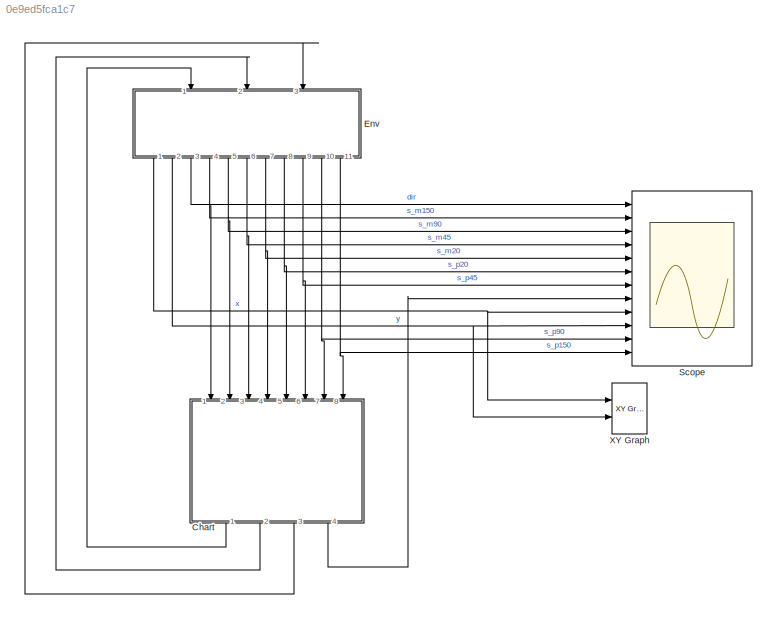
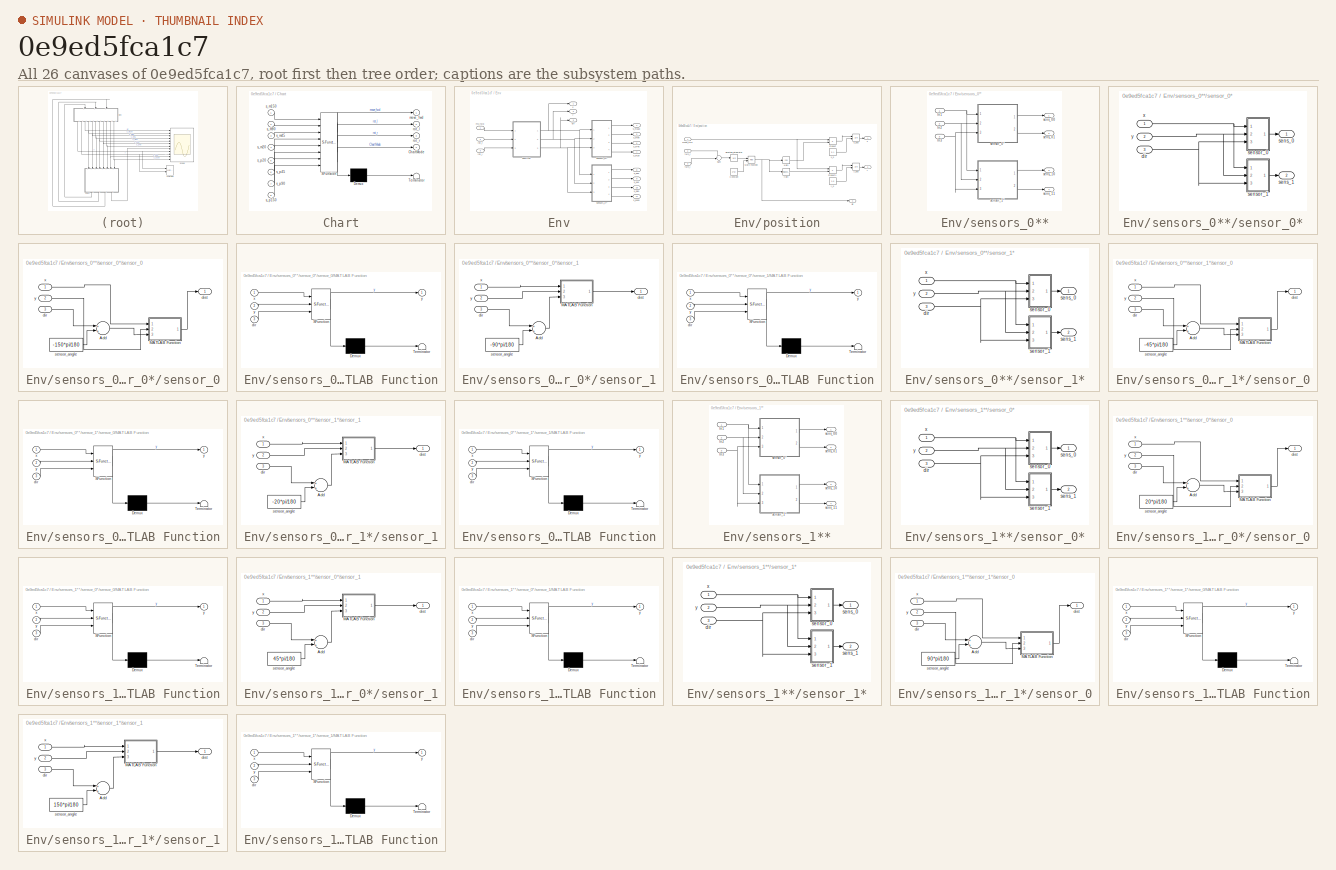
[diagram: thumbnail index - all 26 canvases of the model, root first then tree order]
MODEL slx_0e9ed5fca1c7
KIND model
CONFIG AbsTol = auto
CONFIG FixedStep = 0.004
CONFIG MaxStep = auto
CONFIG MinStep = auto
CONFIG RelTol = 1e-3
CONFIG SampleTimeConstraint = Unconstrained
CONFIG Solver = FixedStepAuto
CONFIG SolverMode = Auto
CONFIG SolverName = FixedStepAuto
CONFIG StartTime = 0.0
CONFIG StopTime = 30.0
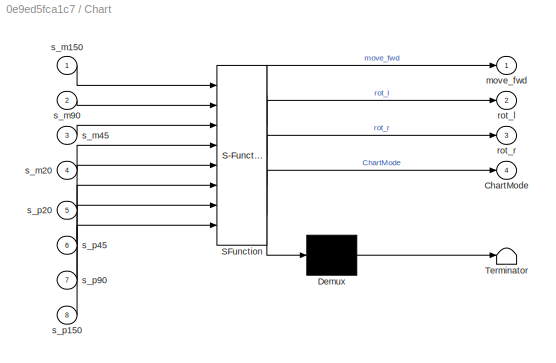
BLOCK [SubSystem] Chart
  ErrorFcn = Stateflow.Translate.translate
  PermitHierarchicalResolution = ExplicitOnly
  Ports = [8, 4]
  RequestExecContextInheritance = off
  SFBlockType = Chart
  TreatAsAtomicUnit = on
  Variant = off
BLOCK [Demux] Chart/ Demux 
  Outputs = 1
  Ports = [1, 1]
BLOCK [S-Function] Chart/ SFunction 
  EnableBusSupport = on
  FunctionName = sf_sfun
  PortCounts = [8 5]
  Ports = [8, 5]
  SFunctionDeploymentMode = off
  Tag = Stateflow S-Function right_hand_rule 3
BLOCK [Terminator] Chart/ Terminator 
BLOCK [Outport] Chart/ChartMode
  IconDisplay = Port number
  Port = 4
BLOCK [Outport] Chart/move_fwd
  IconDisplay = Port number
BLOCK [Outport] Chart/rot_l
  IconDisplay = Port number
  Port = 2
BLOCK [Outport] Chart/rot_r
  IconDisplay = Port number
  Port = 3
BLOCK [Inport] Chart/s_m150
  IconDisplay = Port number
BLOCK [Inport] Chart/s_m20
  IconDisplay = Port number
  Port = 4
BLOCK [Inport] Chart/s_m45
  IconDisplay = Port number
  Port = 3
BLOCK [Inport] Chart/s_m90
  IconDisplay = Port number
  Port = 2
BLOCK [Inport] Chart/s_p150
  IconDisplay = Port number
  Port = 8
BLOCK [Inport] Chart/s_p20
  IconDisplay = Port number
  Port = 5
BLOCK [Inport] Chart/s_p45
  IconDisplay = Port number
  Port = 6
BLOCK [Inport] Chart/s_p90
  IconDisplay = Port number
  Port = 7
BLOCK [SubSystem] Env
  Ports = [3, 11]
  RequestExecContextInheritance = off
  Variant = off
BLOCK [Outport] Env/dir
  IconDisplay = Port number
  Port = 3
BLOCK [Inport] Env/mv_fwd
  IconDisplay = Port number
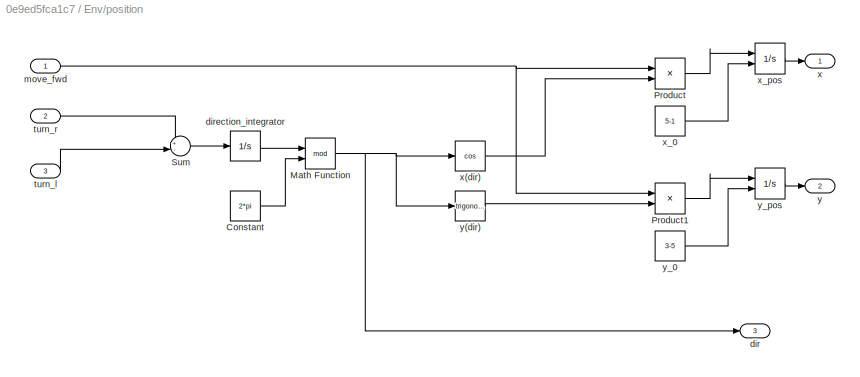
BLOCK [SubSystem] Env/position
  Ports = [3, 3]
  RequestExecContextInheritance = off
  Variant = off
BLOCK [Constant] Env/position/Constant
  Value = 2*pi
BLOCK [Math] Env/position/Math Function
  Operator = mod
  Ports = [2, 1]
BLOCK [Product] Env/position/Product
  InputSameDT = off
  OutDataTypeStr = Inherit: Inherit via internal rule
  Ports = [2, 1]
  RndMeth = Floor
  SaturateOnIntegerOverflow = off
BLOCK [Product] Env/position/Product1
  InputSameDT = off
  OutDataTypeStr = Inherit: Inherit via internal rule
  Ports = [2, 1]
  RndMeth = Floor
  SaturateOnIntegerOverflow = off
BLOCK [Sum] Env/position/Sum
  IconShape = round
  InputSameDT = off
  Inputs = +-
  OutDataTypeStr = Inherit: Inherit via internal rule
  Ports = [2, 1]
  SaturateOnIntegerOverflow = off
BLOCK [Outport] Env/position/dir
  IconDisplay = Port number
  Port = 3
BLOCK [Integrator] Env/position/direction_integrator 
  InitialCondition = -150*pi/180
  Ports = [1, 1]
BLOCK [Inport] Env/position/move_fwd
  IconDisplay = Port number
BLOCK [Inport] Env/position/turn_l
  IconDisplay = Port number
  Port = 3
BLOCK [Inport] Env/position/turn_r
  IconDisplay = Port number
  Port = 2
BLOCK [Outport] Env/position/x
  IconDisplay = Port number
BLOCK [Trigonometry] Env/position/x(dir)
  Operator = cos
  Ports = [1, 1]
BLOCK [Constant] Env/position/x_0
  Value = 5-1
BLOCK [Integrator] Env/position/x_pos
  InitialCondition = exterm
  InitialConditionSource = external
  Ports = [2, 1]
BLOCK [Outport] Env/position/y
  IconDisplay = Port number
  Port = 2
BLOCK [Trigonometry] Env/position/y(dir)
  Ports = [1, 1]
BLOCK [Constant] Env/position/y_0
  Value = 3-5
BLOCK [Integrator] Env/position/y_pos
  InitialCondition = exterm
  InitialConditionSource = external
  Ports = [2, 1]
BLOCK [Inport] Env/rot_l
  IconDisplay = Port number
  Port = 3
BLOCK [Inport] Env/rot_r
  IconDisplay = Port number
  Port = 2
BLOCK [Outport] Env/s_m150
  IconDisplay = Port number
  Port = 4
BLOCK [Outport] Env/s_m20
  IconDisplay = Port number
  Port = 7
BLOCK [Outport] Env/s_m45
  IconDisplay = Port number
  Port = 6
BLOCK [Outport] Env/s_m90
  IconDisplay = Port number
  Port = 5
BLOCK [Outport] Env/s_p150
  IconDisplay = Port number
  Port = 11
BLOCK [Outport] Env/s_p20
  IconDisplay = Port number
  Port = 8
BLOCK [Outport] Env/s_p45
  IconDisplay = Port number
  Port = 9
BLOCK [Outport] Env/s_p90
  IconDisplay = Port number
  Port = 10
BLOCK [SubSystem] Env/sensors_0**
  Ports = [3, 4]
  RequestExecContextInheritance = off
  Variant = off
BLOCK [Inport] Env/sensors_0**/In1
  IconDisplay = Port number
BLOCK [Inport] Env/sensors_0**/In2
  IconDisplay = Port number
  Port = 2
BLOCK [Inport] Env/sensors_0**/In3
  IconDisplay = Port number
  Port = 3
BLOCK [Outport] Env/sensors_0**/sens_00
  IconDisplay = Port number
BLOCK [Outport] Env/sensors_0**/sens_01
  IconDisplay = Port number
  Port = 2
BLOCK [Outport] Env/sensors_0**/sens_10
  IconDisplay = Port number
  Port = 3
BLOCK [Outport] Env/sensors_0**/sens_11
  IconDisplay = Port number
  Port = 4
BLOCK [SubSystem] Env/sensors_0**/sensor_0*
  Ports = [3, 2]
  RequestExecContextInheritance = off
  Variant = off
BLOCK [Inport] Env/sensors_0**/sensor_0*/dir
  IconDisplay = Port number
  Port = 3
BLOCK [Outport] Env/sensors_0**/sensor_0*/sens_0
  IconDisplay = Port number
BLOCK [Outport] Env/sensors_0**/sensor_0*/sens_1
  IconDisplay = Port number
  Port = 2
BLOCK [SubSystem] Env/sensors_0**/sensor_0*/sensor_0
  Ports = [3, 1]
  RequestExecContextInheritance = off
  Variant = off
BLOCK [Sum] Env/sensors_0**/sensor_0*/sensor_0/Add
  InputSameDT = off
  OutDataTypeStr = Inherit: Inherit via internal rule
  Ports = [2, 1]
  SaturateOnIntegerOverflow = off
BLOCK [SubSystem] Env/sensors_0**/sensor_0*/sensor_0/MATLAB Function
  ErrorFcn = Stateflow.Translate.translate
  PermitHierarchicalResolution = ExplicitOnly
  Ports = [3, 1]
  RequestExecContextInheritance = off
  SFBlockType = MATLAB Function
  TreatAsAtomicUnit = on
  Variant = off
BLOCK [Demux] Env/sensors_0**/sensor_0*/sensor_0/MATLAB Function/ Demux 
  Outputs = 1
  Ports = [1, 1]
BLOCK [S-Function] Env/sensors_0**/sensor_0*/sensor_0/MATLAB Function/ SFunction 
  EnableBusSupport = on
  FunctionName = sf_sfun
  PortCounts = [3 2]
  Ports = [3, 2]
  SFunctionDeploymentMode = off
  Tag = Stateflow S-Function right_hand_rule 2
BLOCK [Terminator] Env/sensors_0**/sensor_0*/sensor_0/MATLAB Function/ Terminator 
BLOCK [Inport] Env/sensors_0**/sensor_0*/sensor_0/MATLAB Function/dir
  IconDisplay = Port number
  Port = 3
BLOCK [Inport] Env/sensors_0**/sensor_0*/sensor_0/MATLAB Function/x
  IconDisplay = Port number
BLOCK [Outport] Env/sensors_0**/sensor_0*/sensor_0/MATLAB Function/y
  IconDisplay = Port number
BLOCK [Inport] Env/sensors_0**/sensor_0*/sensor_0/MATLAB Function/y 
  IconDisplay = Port number
  Port = 2
BLOCK [Inport] Env/sensors_0**/sensor_0*/sensor_0/dir
  IconDisplay = Port number
  Port = 3
BLOCK [Outport] Env/sensors_0**/sensor_0*/sensor_0/dist
  IconDisplay = Port number
BLOCK [Constant] Env/sensors_0**/sensor_0*/sensor_0/sensor_angle
  Value = -150*pi/180
BLOCK [Inport] Env/sensors_0**/sensor_0*/sensor_0/x
  IconDisplay = Port number
BLOCK [Inport] Env/sensors_0**/sensor_0*/sensor_0/y
  IconDisplay = Port number
  Port = 2
BLOCK [SubSystem] Env/sensors_0**/sensor_0*/sensor_1
  Ports = [3, 1]
  RequestExecContextInheritance = off
  Variant = off
BLOCK [Sum] Env/sensors_0**/sensor_0*/sensor_1/Add
  InputSameDT = off
  OutDataTypeStr = Inherit: Inherit via internal rule
  Ports = [2, 1]
  SaturateOnIntegerOverflow = off
BLOCK [SubSystem] Env/sensors_0**/sensor_0*/sensor_1/MATLAB Function
  ErrorFcn = Stateflow.Translate.translate
  PermitHierarchicalResolution = ExplicitOnly
  Ports = [3, 1]
  RequestExecContextInheritance = off
  SFBlockType = MATLAB Function
  TreatAsAtomicUnit = on
  Variant = off
BLOCK [Demux] Env/sensors_0**/sensor_0*/sensor_1/MATLAB Function/ Demux 
  Outputs = 1
  Ports = [1, 1]
BLOCK [S-Function] Env/sensors_0**/sensor_0*/sensor_1/MATLAB Function/ SFunction 
  EnableBusSupport = on
  FunctionName = sf_sfun
  PortCounts = [3 2]
  Ports = [3, 2]
  SFunctionDeploymentMode = off
  Tag = Stateflow S-Function right_hand_rule 1
BLOCK [Terminator] Env/sensors_0**/sensor_0*/sensor_1/MATLAB Function/ Terminator 
BLOCK [Inport] Env/sensors_0**/sensor_0*/sensor_1/MATLAB Function/dir
  IconDisplay = Port number
  Port = 3
BLOCK [Inport] Env/sensors_0**/sensor_0*/sensor_1/MATLAB Function/x
  IconDisplay = Port number
BLOCK [Outport] Env/sensors_0**/sensor_0*/sensor_1/MATLAB Function/y
  IconDisplay = Port number
BLOCK [Inport] Env/sensors_0**/sensor_0*/sensor_1/MATLAB Function/y 
  IconDisplay = Port number
  Port = 2
BLOCK [Inport] Env/sensors_0**/sensor_0*/sensor_1/dir
  IconDisplay = Port number
  Port = 3
BLOCK [Outport] Env/sensors_0**/sensor_0*/sensor_1/dist
  IconDisplay = Port number
BLOCK [Constant] Env/sensors_0**/sensor_0*/sensor_1/sensor_angle
  Value = -90*pi/180
BLOCK [Inport] Env/sensors_0**/sensor_0*/sensor_1/x
  IconDisplay = Port number
BLOCK [Inport] Env/sensors_0**/sensor_0*/sensor_1/y
  IconDisplay = Port number
  Port = 2
BLOCK [Inport] Env/sensors_0**/sensor_0*/x
  IconDisplay = Port number
BLOCK [Inport] Env/sensors_0**/sensor_0*/y
  IconDisplay = Port number
  Port = 2
BLOCK [SubSystem] Env/sensors_0**/sensor_1*
  Ports = [3, 2]
  RequestExecContextInheritance = off
  Variant = off
BLOCK [Inport] Env/sensors_0**/sensor_1*/dir
  IconDisplay = Port number
  Port = 3
BLOCK [Outport] Env/sensors_0**/sensor_1*/sens_0
  IconDisplay = Port number
BLOCK [Outport] Env/sensors_0**/sensor_1*/sens_1
  IconDisplay = Port number
  Port = 2
BLOCK [SubSystem] Env/sensors_0**/sensor_1*/sensor_0
  Ports = [3, 1]
  RequestExecContextInheritance = off
  Variant = off
BLOCK [Sum] Env/sensors_0**/sensor_1*/sensor_0/Add
  InputSameDT = off
  OutDataTypeStr = Inherit: Inherit via internal rule
  Ports = [2, 1]
  SaturateOnIntegerOverflow = off
BLOCK [SubSystem] Env/sensors_0**/sensor_1*/sensor_0/MATLAB Function
  ErrorFcn = Stateflow.Translate.translate
  PermitHierarchicalResolution = ExplicitOnly
  Ports = [3, 1]
  RequestExecContextInheritance = off
  SFBlockType = MATLAB Function
  TreatAsAtomicUnit = on
  Variant = off
BLOCK [Demux] Env/sensors_0**/sensor_1*/sensor_0/MATLAB Function/ Demux 
  Outputs = 1
  Ports = [1, 1]
BLOCK [S-Function] Env/sensors_0**/sensor_1*/sensor_0/MATLAB Function/ SFunction 
  EnableBusSupport = on
  FunctionName = sf_sfun
  PortCounts = [3 2]
  Ports = [3, 2]
  SFunctionDeploymentMode = off
  Tag = Stateflow S-Function right_hand_rule 4
BLOCK [Terminator] Env/sensors_0**/sensor_1*/sensor_0/MATLAB Function/ Terminator 
BLOCK [Inport] Env/sensors_0**/sensor_1*/sensor_0/MATLAB Function/dir
  IconDisplay = Port number
  Port = 3
BLOCK [Inport] Env/sensors_0**/sensor_1*/sensor_0/MATLAB Function/x
  IconDisplay = Port number
BLOCK [Outport] Env/sensors_0**/sensor_1*/sensor_0/MATLAB Function/y
  IconDisplay = Port number
BLOCK [Inport] Env/sensors_0**/sensor_1*/sensor_0/MATLAB Function/y 
  IconDisplay = Port number
  Port = 2
BLOCK [Inport] Env/sensors_0**/sensor_1*/sensor_0/dir
  IconDisplay = Port number
  Port = 3
BLOCK [Outport] Env/sensors_0**/sensor_1*/sensor_0/dist
  IconDisplay = Port number
BLOCK [Constant] Env/sensors_0**/sensor_1*/sensor_0/sensor_angle
  Value = -45*pi/180
BLOCK [Inport] Env/sensors_0**/sensor_1*/sensor_0/x
  IconDisplay = Port number
BLOCK [Inport] Env/sensors_0**/sensor_1*/sensor_0/y
  IconDisplay = Port number
  Port = 2
BLOCK [SubSystem] Env/sensors_0**/sensor_1*/sensor_1
  Ports = [3, 1]
  RequestExecContextInheritance = off
  Variant = off
BLOCK [Sum] Env/sensors_0**/sensor_1*/sensor_1/Add
  InputSameDT = off
  OutDataTypeStr = Inherit: Inherit via internal rule
  Ports = [2, 1]
  SaturateOnIntegerOverflow = off
BLOCK [SubSystem] Env/sensors_0**/sensor_1*/sensor_1/MATLAB Function
  ErrorFcn = Stateflow.Translate.translate
  PermitHierarchicalResolution = ExplicitOnly
  Ports = [3, 1]
  RequestExecContextInheritance = off
  SFBlockType = MATLAB Function
  TreatAsAtomicUnit = on
  Variant = off
BLOCK [Demux] Env/sensors_0**/sensor_1*/sensor_1/MATLAB Function/ Demux 
  Outputs = 1
  Ports = [1, 1]
BLOCK [S-Function] Env/sensors_0**/sensor_1*/sensor_1/MATLAB Function/ SFunction 
  EnableBusSupport = on
  FunctionName = sf_sfun
  PortCounts = [3 2]
  Ports = [3, 2]
  SFunctionDeploymentMode = off
  Tag = Stateflow S-Function right_hand_rule 5
BLOCK [Terminator] Env/sensors_0**/sensor_1*/sensor_1/MATLAB Function/ Terminator 
BLOCK [Inport] Env/sensors_0**/sensor_1*/sensor_1/MATLAB Function/dir
  IconDisplay = Port number
  Port = 3
BLOCK [Inport] Env/sensors_0**/sensor_1*/sensor_1/MATLAB Function/x
  IconDisplay = Port number
BLOCK [Outport] Env/sensors_0**/sensor_1*/sensor_1/MATLAB Function/y
  IconDisplay = Port number
BLOCK [Inport] Env/sensors_0**/sensor_1*/sensor_1/MATLAB Function/y 
  IconDisplay = Port number
  Port = 2
BLOCK [Inport] Env/sensors_0**/sensor_1*/sensor_1/dir
  IconDisplay = Port number
  Port = 3
BLOCK [Outport] Env/sensors_0**/sensor_1*/sensor_1/dist
  IconDisplay = Port number
BLOCK [Constant] Env/sensors_0**/sensor_1*/sensor_1/sensor_angle
  Value = -20*pi/180
BLOCK [Inport] Env/sensors_0**/sensor_1*/sensor_1/x
  IconDisplay = Port number
BLOCK [Inport] Env/sensors_0**/sensor_1*/sensor_1/y
  IconDisplay = Port number
  Port = 2
BLOCK [Inport] Env/sensors_0**/sensor_1*/x
  IconDisplay = Port number
BLOCK [Inport] Env/sensors_0**/sensor_1*/y
  IconDisplay = Port number
  Port = 2
BLOCK [SubSystem] Env/sensors_1**
  Ports = [3, 4]
  RequestExecContextInheritance = off
  Variant = off
BLOCK [Inport] Env/sensors_1**/In1
  IconDisplay = Port number
BLOCK [Inport] Env/sensors_1**/In2
  IconDisplay = Port number
  Port = 2
BLOCK [Inport] Env/sensors_1**/In3
  IconDisplay = Port number
  Port = 3
BLOCK [Outport] Env/sensors_1**/sens_00
  IconDisplay = Port number
BLOCK [Outport] Env/sensors_1**/sens_01
  IconDisplay = Port number
  Port = 2
BLOCK [Outport] Env/sensors_1**/sens_10
  IconDisplay = Port number
  Port = 3
BLOCK [Outport] Env/sensors_1**/sens_11
  IconDisplay = Port number
  Port = 4
BLOCK [SubSystem] Env/sensors_1**/sensor_0*
  Ports = [3, 2]
  RequestExecContextInheritance = off
  Variant = off
BLOCK [Inport] Env/sensors_1**/sensor_0*/dir
  IconDisplay = Port number
  Port = 3
BLOCK [Outport] Env/sensors_1**/sensor_0*/sens_0
  IconDisplay = Port number
BLOCK [Outport] Env/sensors_1**/sensor_0*/sens_1
  IconDisplay = Port number
  Port = 2
BLOCK [SubSystem] Env/sensors_1**/sensor_0*/sensor_0
  Ports = [3, 1]
  RequestExecContextInheritance = off
  Variant = off
BLOCK [Sum] Env/sensors_1**/sensor_0*/sensor_0/Add
  InputSameDT = off
  OutDataTypeStr = Inherit: Inherit via internal rule
  Ports = [2, 1]
  SaturateOnIntegerOverflow = off
BLOCK [SubSystem] Env/sensors_1**/sensor_0*/sensor_0/MATLAB Function
  ErrorFcn = Stateflow.Translate.translate
  PermitHierarchicalResolution = ExplicitOnly
  Ports = [3, 1]
  RequestExecContextInheritance = off
  SFBlockType = MATLAB Function
  TreatAsAtomicUnit = on
  Variant = off
BLOCK [Demux] Env/sensors_1**/sensor_0*/sensor_0/MATLAB Function/ Demux 
  Outputs = 1
  Ports = [1, 1]
BLOCK [S-Function] Env/sensors_1**/sensor_0*/sensor_0/MATLAB Function/ SFunction 
  EnableBusSupport = on
  FunctionName = sf_sfun
  PortCounts = [3 2]
  Ports = [3, 2]
  SFunctionDeploymentMode = off
  Tag = Stateflow S-Function right_hand_rule 6
BLOCK [Terminator] Env/sensors_1**/sensor_0*/sensor_0/MATLAB Function/ Terminator 
BLOCK [Inport] Env/sensors_1**/sensor_0*/sensor_0/MATLAB Function/dir
  IconDisplay = Port number
  Port = 3
BLOCK [Inport] Env/sensors_1**/sensor_0*/sensor_0/MATLAB Function/x
  IconDisplay = Port number
BLOCK [Outport] Env/sensors_1**/sensor_0*/sensor_0/MATLAB Function/y
  IconDisplay = Port number
BLOCK [Inport] Env/sensors_1**/sensor_0*/sensor_0/MATLAB Function/y 
  IconDisplay = Port number
  Port = 2
BLOCK [Inport] Env/sensors_1**/sensor_0*/sensor_0/dir
  IconDisplay = Port number
  Port = 3
BLOCK [Outport] Env/sensors_1**/sensor_0*/sensor_0/dist
  IconDisplay = Port number
BLOCK [Constant] Env/sensors_1**/sensor_0*/sensor_0/sensor_angle
  Value = 20*pi/180
BLOCK [Inport] Env/sensors_1**/sensor_0*/sensor_0/x
  IconDisplay = Port number
BLOCK [Inport] Env/sensors_1**/sensor_0*/sensor_0/y
  IconDisplay = Port number
  Port = 2
BLOCK [SubSystem] Env/sensors_1**/sensor_0*/sensor_1
  Ports = [3, 1]
  RequestExecContextInheritance = off
  Variant = off
BLOCK [Sum] Env/sensors_1**/sensor_0*/sensor_1/Add
  InputSameDT = off
  OutDataTypeStr = Inherit: Inherit via internal rule
  Ports = [2, 1]
  SaturateOnIntegerOverflow = off
BLOCK [SubSystem] Env/sensors_1**/sensor_0*/sensor_1/MATLAB Function
  ErrorFcn = Stateflow.Translate.translate
  PermitHierarchicalResolution = ExplicitOnly
  Ports = [3, 1]
  RequestExecContextInheritance = off
  SFBlockType = MATLAB Function
  TreatAsAtomicUnit = on
  Variant = off
BLOCK [Demux] Env/sensors_1**/sensor_0*/sensor_1/MATLAB Function/ Demux 
  Outputs = 1
  Ports = [1, 1]
BLOCK [S-Function] Env/sensors_1**/sensor_0*/sensor_1/MATLAB Function/ SFunction 
  EnableBusSupport = on
  FunctionName = sf_sfun
  PortCounts = [3 2]
  Ports = [3, 2]
  SFunctionDeploymentMode = off
  Tag = Stateflow S-Function right_hand_rule 7
BLOCK [Terminator] Env/sensors_1**/sensor_0*/sensor_1/MATLAB Function/ Terminator 
BLOCK [Inport] Env/sensors_1**/sensor_0*/sensor_1/MATLAB Function/dir
  IconDisplay = Port number
  Port = 3
BLOCK [Inport] Env/sensors_1**/sensor_0*/sensor_1/MATLAB Function/x
  IconDisplay = Port number
BLOCK [Outport] Env/sensors_1**/sensor_0*/sensor_1/MATLAB Function/y
  IconDisplay = Port number
BLOCK [Inport] Env/sensors_1**/sensor_0*/sensor_1/MATLAB Function/y 
  IconDisplay = Port number
  Port = 2
BLOCK [Inport] Env/sensors_1**/sensor_0*/sensor_1/dir
  IconDisplay = Port number
  Port = 3
BLOCK [Outport] Env/sensors_1**/sensor_0*/sensor_1/dist
  IconDisplay = Port number
BLOCK [Constant] Env/sensors_1**/sensor_0*/sensor_1/sensor_angle
  Value = 45*pi/180
BLOCK [Inport] Env/sensors_1**/sensor_0*/sensor_1/x
  IconDisplay = Port number
BLOCK [Inport] Env/sensors_1**/sensor_0*/sensor_1/y
  IconDisplay = Port number
  Port = 2
BLOCK [Inport] Env/sensors_1**/sensor_0*/x
  IconDisplay = Port number
BLOCK [Inport] Env/sensors_1**/sensor_0*/y
  IconDisplay = Port number
  Port = 2
BLOCK [SubSystem] Env/sensors_1**/sensor_1*
  Ports = [3, 2]
  RequestExecContextInheritance = off
  Variant = off
BLOCK [Inport] Env/sensors_1**/sensor_1*/dir
  IconDisplay = Port number
  Port = 3
BLOCK [Outport] Env/sensors_1**/sensor_1*/sens_0
  IconDisplay = Port number
BLOCK [Outport] Env/sensors_1**/sensor_1*/sens_1
  IconDisplay = Port number
  Port = 2
BLOCK [SubSystem] Env/sensors_1**/sensor_1*/sensor_0
  Ports = [3, 1]
  RequestExecContextInheritance = off
  Variant = off
BLOCK [Sum] Env/sensors_1**/sensor_1*/sensor_0/Add
  InputSameDT = off
  OutDataTypeStr = Inherit: Inherit via internal rule
  Ports = [2, 1]
  SaturateOnIntegerOverflow = off
BLOCK [SubSystem] Env/sensors_1**/sensor_1*/sensor_0/MATLAB Function
  ErrorFcn = Stateflow.Translate.translate
  PermitHierarchicalResolution = ExplicitOnly
  Ports = [3, 1]
  RequestExecContextInheritance = off
  SFBlockType = MATLAB Function
  TreatAsAtomicUnit = on
  Variant = off
BLOCK [Demux] Env/sensors_1**/sensor_1*/sensor_0/MATLAB Function/ Demux 
  Outputs = 1
  Ports = [1, 1]
BLOCK [S-Function] Env/sensors_1**/sensor_1*/sensor_0/MATLAB Function/ SFunction 
  EnableBusSupport = on
  FunctionName = sf_sfun
  PortCounts = [3 2]
  Ports = [3, 2]
  SFunctionDeploymentMode = off
  Tag = Stateflow S-Function right_hand_rule 8
BLOCK [Terminator] Env/sensors_1**/sensor_1*/sensor_0/MATLAB Function/ Terminator 
BLOCK [Inport] Env/sensors_1**/sensor_1*/sensor_0/MATLAB Function/dir
  IconDisplay = Port number
  Port = 3
BLOCK [Inport] Env/sensors_1**/sensor_1*/sensor_0/MATLAB Function/x
  IconDisplay = Port number
BLOCK [Outport] Env/sensors_1**/sensor_1*/sensor_0/MATLAB Function/y
  IconDisplay = Port number
BLOCK [Inport] Env/sensors_1**/sensor_1*/sensor_0/MATLAB Function/y 
  IconDisplay = Port number
  Port = 2
BLOCK [Inport] Env/sensors_1**/sensor_1*/sensor_0/dir
  IconDisplay = Port number
  Port = 3
BLOCK [Outport] Env/sensors_1**/sensor_1*/sensor_0/dist
  IconDisplay = Port number
BLOCK [Constant] Env/sensors_1**/sensor_1*/sensor_0/sensor_angle
  Value = 90*pi/180
BLOCK [Inport] Env/sensors_1**/sensor_1*/sensor_0/x
  IconDisplay = Port number
BLOCK [Inport] Env/sensors_1**/sensor_1*/sensor_0/y
  IconDisplay = Port number
  Port = 2
BLOCK [SubSystem] Env/sensors_1**/sensor_1*/sensor_1
  Ports = [3, 1]
  RequestExecContextInheritance = off
  Variant = off
BLOCK [Sum] Env/sensors_1**/sensor_1*/sensor_1/Add
  InputSameDT = off
  OutDataTypeStr = Inherit: Inherit via internal rule
  Ports = [2, 1]
  SaturateOnIntegerOverflow = off
BLOCK [SubSystem] Env/sensors_1**/sensor_1*/sensor_1/MATLAB Function
  ErrorFcn = Stateflow.Translate.translate
  PermitHierarchicalResolution = ExplicitOnly
  Ports = [3, 1]
  RequestExecContextInheritance = off
  SFBlockType = MATLAB Function
  TreatAsAtomicUnit = on
  Variant = off
BLOCK [Demux] Env/sensors_1**/sensor_1*/sensor_1/MATLAB Function/ Demux 
  Outputs = 1
  Ports = [1, 1]
BLOCK [S-Function] Env/sensors_1**/sensor_1*/sensor_1/MATLAB Function/ SFunction 
  EnableBusSupport = on
  FunctionName = sf_sfun
  PortCounts = [3 2]
  Ports = [3, 2]
  SFunctionDeploymentMode = off
  Tag = Stateflow S-Function right_hand_rule 9
BLOCK [Terminator] Env/sensors_1**/sensor_1*/sensor_1/MATLAB Function/ Terminator 
BLOCK [Inport] Env/sensors_1**/sensor_1*/sensor_1/MATLAB Function/dir
  IconDisplay = Port number
  Port = 3
BLOCK [Inport] Env/sensors_1**/sensor_1*/sensor_1/MATLAB Function/x
  IconDisplay = Port number
BLOCK [Outport] Env/sensors_1**/sensor_1*/sensor_1/MATLAB Function/y
  IconDisplay = Port number
BLOCK [Inport] Env/sensors_1**/sensor_1*/sensor_1/MATLAB Function/y 
  IconDisplay = Port number
  Port = 2
BLOCK [Inport] Env/sensors_1**/sensor_1*/sensor_1/dir
  IconDisplay = Port number
  Port = 3
BLOCK [Outport] Env/sensors_1**/sensor_1*/sensor_1/dist
  IconDisplay = Port number
BLOCK [Constant] Env/sensors_1**/sensor_1*/sensor_1/sensor_angle
  Value = 150*pi/180
BLOCK [Inport] Env/sensors_1**/sensor_1*/sensor_1/x
  IconDisplay = Port number
BLOCK [Inport] Env/sensors_1**/sensor_1*/sensor_1/y
  IconDisplay = Port number
  Port = 2
BLOCK [Inport] Env/sensors_1**/sensor_1*/x
  IconDisplay = Port number
BLOCK [Inport] Env/sensors_1**/sensor_1*/y
  IconDisplay = Port number
  Port = 2
BLOCK [Outport] Env/x
  IconDisplay = Port number
BLOCK [Outport] Env/y
  IconDisplay = Port number
  Port = 2
BLOCK [Scope] Scope
  NumInputPorts = 12
  Ports = [12]
  ScopeSpecificationString = Simulink.scopes.TimeScopeBlockCfg('CurrentConfiguration', extmgr.ConfigurationSet(extmgr.Configuration('Core','General UI',true),extmgr.Configuration('Core','Source UI',true),extmgr.Configuration('Sources','WiredSimulink',true),extmgr.Configuration('Visuals','Time Domain',true,'SerializedDisplays',{struct('MinYLimReal','-0.78289','MaxYLimReal','7.06609','YLabelReal','','MinYLimMag','0.00000','MaxY...<+9073ch>
BLOCK [Reference] XY Graph  REF=simulink/Sinks/XY Graph
  Ports = [2]
  SourceBlock = simulink/Sinks/XY Graph
  SourceType = XY scope.
LINE Chart:1 -> Env:1
LINE Chart:2 -> Env:2
LINE Chart:3 -> Env:3
LINE Chart:4 -> Scope:8
LINE Env/mv_fwd:1 -> Env/position:1
LINE Env/position/Constant:1 -> Env/position/Math Function:2
NET Env/position/Math Function:1 -> Env/position/dir:1, Env/position/x(dir):1, Env/position/y(dir):1
LINE Env/position/Product1:1 -> Env/position/y_pos:1
LINE Env/position/Product:1 -> Env/position/x_pos:1
LINE Env/position/Sum:1 -> Env/position/direction_integrator :1
LINE Env/position/direction_integrator :1 -> Env/position/Math Function:1
NET Env/position/move_fwd:1 -> Env/position/Product1:1, Env/position/Product:1
LINE Env/position/turn_l:1 -> Env/position/Sum:2
LINE Env/position/turn_r:1 -> Env/position/Sum:1
LINE Env/position/x(dir):1 -> Env/position/Product:2
LINE Env/position/x_0:1 -> Env/position/x_pos:2
LINE Env/position/x_pos:1 -> Env/position/x:1
LINE Env/position/y(dir):1 -> Env/position/Product1:2
LINE Env/position/y_0:1 -> Env/position/y_pos:2
LINE Env/position/y_pos:1 -> Env/position/y:1
NET Env/position:1 -> Env/sensors_0**:1, Env/sensors_1**:1, Env/x:1
NET Env/position:2 -> Env/sensors_0**:2, Env/sensors_1**:2, Env/y:1
NET Env/position:3 -> Env/dir:1, Env/sensors_0**:3, Env/sensors_1**:3
LINE Env/rot_l:1 -> Env/position:3
LINE Env/rot_r:1 -> Env/position:2
NET Env/sensors_0**/In1:1 -> Env/sensors_0**/sensor_0*:1, Env/sensors_0**/sensor_1*:1
NET Env/sensors_0**/In2:1 -> Env/sensors_0**/sensor_0*:2, Env/sensors_0**/sensor_1*:2
NET Env/sensors_0**/In3:1 -> Env/sensors_0**/sensor_0*:3, Env/sensors_0**/sensor_1*:3
NET Env/sensors_0**/sensor_0*/dir:1 -> Env/sensors_0**/sensor_0*/sensor_0:3, Env/sensors_0**/sensor_0*/sensor_1:3
LINE Env/sensors_0**/sensor_0*/sensor_0/Add:1 -> Env/sensors_0**/sensor_0*/sensor_0/MATLAB Function:3
LINE Env/sensors_0**/sensor_0*/sensor_0/MATLAB Function:1 -> Env/sensors_0**/sensor_0*/sensor_0/dist:1
LINE Env/sensors_0**/sensor_0*/sensor_0/dir:1 -> Env/sensors_0**/sensor_0*/sensor_0/Add:1
LINE Env/sensors_0**/sensor_0*/sensor_0/sensor_angle:1 -> Env/sensors_0**/sensor_0*/sensor_0/Add:2
LINE Env/sensors_0**/sensor_0*/sensor_0/x:1 -> Env/sensors_0**/sensor_0*/sensor_0/MATLAB Function:1
LINE Env/sensors_0**/sensor_0*/sensor_0/y:1 -> Env/sensors_0**/sensor_0*/sensor_0/MATLAB Function:2
LINE Env/sensors_0**/sensor_0*/sensor_0:1 -> Env/sensors_0**/sensor_0*/sens_0:1
LINE Env/sensors_0**/sensor_0*/sensor_1/Add:1 -> Env/sensors_0**/sensor_0*/sensor_1/MATLAB Function:3
LINE Env/sensors_0**/sensor_0*/sensor_1/MATLAB Function:1 -> Env/sensors_0**/sensor_0*/sensor_1/dist:1
LINE Env/sensors_0**/sensor_0*/sensor_1/dir:1 -> Env/sensors_0**/sensor_0*/sensor_1/Add:1
LINE Env/sensors_0**/sensor_0*/sensor_1/sensor_angle:1 -> Env/sensors_0**/sensor_0*/sensor_1/Add:2
LINE Env/sensors_0**/sensor_0*/sensor_1/x:1 -> Env/sensors_0**/sensor_0*/sensor_1/MATLAB Function:1
LINE Env/sensors_0**/sensor_0*/sensor_1/y:1 -> Env/sensors_0**/sensor_0*/sensor_1/MATLAB Function:2
LINE Env/sensors_0**/sensor_0*/sensor_1:1 -> Env/sensors_0**/sensor_0*/sens_1:1
NET Env/sensors_0**/sensor_0*/x:1 -> Env/sensors_0**/sensor_0*/sensor_0:1, Env/sensors_0**/sensor_0*/sensor_1:1
NET Env/sensors_0**/sensor_0*/y:1 -> Env/sensors_0**/sensor_0*/sensor_0:2, Env/sensors_0**/sensor_0*/sensor_1:2
LINE Env/sensors_0**/sensor_0*:1 -> Env/sensors_0**/sens_00:1
LINE Env/sensors_0**/sensor_0*:2 -> Env/sensors_0**/sens_01:1
NET Env/sensors_0**/sensor_1*/dir:1 -> Env/sensors_0**/sensor_1*/sensor_0:3, Env/sensors_0**/sensor_1*/sensor_1:3
LINE Env/sensors_0**/sensor_1*/sensor_0/Add:1 -> Env/sensors_0**/sensor_1*/sensor_0/MATLAB Function:3
LINE Env/sensors_0**/sensor_1*/sensor_0/MATLAB Function:1 -> Env/sensors_0**/sensor_1*/sensor_0/dist:1
LINE Env/sensors_0**/sensor_1*/sensor_0/dir:1 -> Env/sensors_0**/sensor_1*/sensor_0/Add:1
LINE Env/sensors_0**/sensor_1*/sensor_0/sensor_angle:1 -> Env/sensors_0**/sensor_1*/sensor_0/Add:2
LINE Env/sensors_0**/sensor_1*/sensor_0/x:1 -> Env/sensors_0**/sensor_1*/sensor_0/MATLAB Function:1
LINE Env/sensors_0**/sensor_1*/sensor_0/y:1 -> Env/sensors_0**/sensor_1*/sensor_0/MATLAB Function:2
LINE Env/sensors_0**/sensor_1*/sensor_0:1 -> Env/sensors_0**/sensor_1*/sens_0:1
LINE Env/sensors_0**/sensor_1*/sensor_1/Add:1 -> Env/sensors_0**/sensor_1*/sensor_1/MATLAB Function:3
LINE Env/sensors_0**/sensor_1*/sensor_1/MATLAB Function:1 -> Env/sensors_0**/sensor_1*/sensor_1/dist:1
LINE Env/sensors_0**/sensor_1*/sensor_1/dir:1 -> Env/sensors_0**/sensor_1*/sensor_1/Add:1
LINE Env/sensors_0**/sensor_1*/sensor_1/sensor_angle:1 -> Env/sensors_0**/sensor_1*/sensor_1/Add:2
LINE Env/sensors_0**/sensor_1*/sensor_1/x:1 -> Env/sensors_0**/sensor_1*/sensor_1/MATLAB Function:1
LINE Env/sensors_0**/sensor_1*/sensor_1/y:1 -> Env/sensors_0**/sensor_1*/sensor_1/MATLAB Function:2
LINE Env/sensors_0**/sensor_1*/sensor_1:1 -> Env/sensors_0**/sensor_1*/sens_1:1
NET Env/sensors_0**/sensor_1*/x:1 -> Env/sensors_0**/sensor_1*/sensor_0:1, Env/sensors_0**/sensor_1*/sensor_1:1
NET Env/sensors_0**/sensor_1*/y:1 -> Env/sensors_0**/sensor_1*/sensor_0:2, Env/sensors_0**/sensor_1*/sensor_1:2
LINE Env/sensors_0**/sensor_1*:1 -> Env/sensors_0**/sens_10:1
LINE Env/sensors_0**/sensor_1*:2 -> Env/sensors_0**/sens_11:1
LINE Env/sensors_0**:1 -> Env/s_m150:1
LINE Env/sensors_0**:2 -> Env/s_m90:1
LINE Env/sensors_0**:3 -> Env/s_m45:1
LINE Env/sensors_0**:4 -> Env/s_m20:1
NET Env/sensors_1**/In1:1 -> Env/sensors_1**/sensor_0*:1, Env/sensors_1**/sensor_1*:1
NET Env/sensors_1**/In2:1 -> Env/sensors_1**/sensor_0*:2, Env/sensors_1**/sensor_1*:2
NET Env/sensors_1**/In3:1 -> Env/sensors_1**/sensor_0*:3, Env/sensors_1**/sensor_1*:3
NET Env/sensors_1**/sensor_0*/dir:1 -> Env/sensors_1**/sensor_0*/sensor_0:3, Env/sensors_1**/sensor_0*/sensor_1:3
LINE Env/sensors_1**/sensor_0*/sensor_0/Add:1 -> Env/sensors_1**/sensor_0*/sensor_0/MATLAB Function:3
LINE Env/sensors_1**/sensor_0*/sensor_0/MATLAB Function:1 -> Env/sensors_1**/sensor_0*/sensor_0/dist:1
LINE Env/sensors_1**/sensor_0*/sensor_0/dir:1 -> Env/sensors_1**/sensor_0*/sensor_0/Add:1
LINE Env/sensors_1**/sensor_0*/sensor_0/sensor_angle:1 -> Env/sensors_1**/sensor_0*/sensor_0/Add:2
LINE Env/sensors_1**/sensor_0*/sensor_0/x:1 -> Env/sensors_1**/sensor_0*/sensor_0/MATLAB Function:1
LINE Env/sensors_1**/sensor_0*/sensor_0/y:1 -> Env/sensors_1**/sensor_0*/sensor_0/MATLAB Function:2
LINE Env/sensors_1**/sensor_0*/sensor_0:1 -> Env/sensors_1**/sensor_0*/sens_0:1
LINE Env/sensors_1**/sensor_0*/sensor_1/Add:1 -> Env/sensors_1**/sensor_0*/sensor_1/MATLAB Function:3
LINE Env/sensors_1**/sensor_0*/sensor_1/MATLAB Function:1 -> Env/sensors_1**/sensor_0*/sensor_1/dist:1
LINE Env/sensors_1**/sensor_0*/sensor_1/dir:1 -> Env/sensors_1**/sensor_0*/sensor_1/Add:1
LINE Env/sensors_1**/sensor_0*/sensor_1/sensor_angle:1 -> Env/sensors_1**/sensor_0*/sensor_1/Add:2
LINE Env/sensors_1**/sensor_0*/sensor_1/x:1 -> Env/sensors_1**/sensor_0*/sensor_1/MATLAB Function:1
LINE Env/sensors_1**/sensor_0*/sensor_1/y:1 -> Env/sensors_1**/sensor_0*/sensor_1/MATLAB Function:2
LINE Env/sensors_1**/sensor_0*/sensor_1:1 -> Env/sensors_1**/sensor_0*/sens_1:1
NET Env/sensors_1**/sensor_0*/x:1 -> Env/sensors_1**/sensor_0*/sensor_0:1, Env/sensors_1**/sensor_0*/sensor_1:1
NET Env/sensors_1**/sensor_0*/y:1 -> Env/sensors_1**/sensor_0*/sensor_0:2, Env/sensors_1**/sensor_0*/sensor_1:2
LINE Env/sensors_1**/sensor_0*:1 -> Env/sensors_1**/sens_00:1
LINE Env/sensors_1**/sensor_0*:2 -> Env/sensors_1**/sens_01:1
NET Env/sensors_1**/sensor_1*/dir:1 -> Env/sensors_1**/sensor_1*/sensor_0:3, Env/sensors_1**/sensor_1*/sensor_1:3
LINE Env/sensors_1**/sensor_1*/sensor_0/Add:1 -> Env/sensors_1**/sensor_1*/sensor_0/MATLAB Function:3
LINE Env/sensors_1**/sensor_1*/sensor_0/MATLAB Function:1 -> Env/sensors_1**/sensor_1*/sensor_0/dist:1
LINE Env/sensors_1**/sensor_1*/sensor_0/dir:1 -> Env/sensors_1**/sensor_1*/sensor_0/Add:1
LINE Env/sensors_1**/sensor_1*/sensor_0/sensor_angle:1 -> Env/sensors_1**/sensor_1*/sensor_0/Add:2
LINE Env/sensors_1**/sensor_1*/sensor_0/x:1 -> Env/sensors_1**/sensor_1*/sensor_0/MATLAB Function:1
LINE Env/sensors_1**/sensor_1*/sensor_0/y:1 -> Env/sensors_1**/sensor_1*/sensor_0/MATLAB Function:2
LINE Env/sensors_1**/sensor_1*/sensor_0:1 -> Env/sensors_1**/sensor_1*/sens_0:1
LINE Env/sensors_1**/sensor_1*/sensor_1/Add:1 -> Env/sensors_1**/sensor_1*/sensor_1/MATLAB Function:3
LINE Env/sensors_1**/sensor_1*/sensor_1/MATLAB Function:1 -> Env/sensors_1**/sensor_1*/sensor_1/dist:1
LINE Env/sensors_1**/sensor_1*/sensor_1/dir:1 -> Env/sensors_1**/sensor_1*/sensor_1/Add:1
LINE Env/sensors_1**/sensor_1*/sensor_1/sensor_angle:1 -> Env/sensors_1**/sensor_1*/sensor_1/Add:2
LINE Env/sensors_1**/sensor_1*/sensor_1/x:1 -> Env/sensors_1**/sensor_1*/sensor_1/MATLAB Function:1
LINE Env/sensors_1**/sensor_1*/sensor_1/y:1 -> Env/sensors_1**/sensor_1*/sensor_1/MATLAB Function:2
LINE Env/sensors_1**/sensor_1*/sensor_1:1 -> Env/sensors_1**/sensor_1*/sens_1:1
NET Env/sensors_1**/sensor_1*/x:1 -> Env/sensors_1**/sensor_1*/sensor_0:1, Env/sensors_1**/sensor_1*/sensor_1:1
NET Env/sensors_1**/sensor_1*/y:1 -> Env/sensors_1**/sensor_1*/sensor_0:2, Env/sensors_1**/sensor_1*/sensor_1:2
LINE Env/sensors_1**/sensor_1*:1 -> Env/sensors_1**/sens_10:1
LINE Env/sensors_1**/sensor_1*:2 -> Env/sensors_1**/sens_11:1
LINE Env/sensors_1**:1 -> Env/s_p20:1
LINE Env/sensors_1**:2 -> Env/s_p45:1
LINE Env/sensors_1**:3 -> Env/s_p90:1
LINE Env/sensors_1**:4 -> Env/s_p150:1
NET Env:1 -> Scope:9, XY Graph:1
NET Env:10 -> Chart:7, Scope:11
NET Env:11 -> Chart:8, Scope:12
NET Env:2 -> Scope:10, XY Graph:2
LINE Env:3 -> Scope:1
NET Env:4 -> Chart:1, Scope:2
NET Env:5 -> Chart:2, Scope:3
NET Env:6 -> Chart:3, Scope:4
NET Env:7 -> Chart:4, Scope:5
NET Env:8 -> Chart:5, Scope:6
NET Env:9 -> Chart:6, Scope:7
note: NET lines group one-source signal fan-out (src -> all destinations, sorted); 1:1 wires keep LINE
CHART Env/sensors_0**/sensor_0*/sensor_1/MATLAB Function states=1 transitions=1
  STATE_LABEL 'eML_blk_kernel()'
  STATE_LABEL 'SCRIPT:\nfunction y = fcn(x,y,dir)\ny = intersectQuarterPlane(x,y,dir);\n'
CHART Env/sensors_0**/sensor_0*/sensor_0/MATLAB Function states=1 transitions=1
  STATE_LABEL 'eML_blk_kernel()'
  STATE_LABEL 'SCRIPT:\nfunction y = fcn(x,y,dir)\ny = intersectQuarterPlane(x,y,dir);\n'
CHART Chart states=12 transitions=19
  STATE_LABEL 'findWall\nentry:\nmove_fwd=1;\nrot_l = 0;\nrot_r = 0;'
  STATE_LABEL 'checkWall\n% known: nothing\nentry:\nmove_fwd = 0;\nrot_r = 0;\nrot_l = 0;\n[wall_p wall_rot] = find_wall([s_m150, s_m90, s_m45, s_m20, s_p20, s_p45, s_p90, s_p150]);'
  STATE_LABEL 'wallWaiter'
  STATE_LABEL 'claustrophobia\n% known: have -20, -45, -90\nentry:\nmove_fwd = 0;\nrot_l = 1;\nrot_r = 0;'
  STATE_LABEL 'avoidCollision\n% known: have -20, -45\nentry:\nmove_fwd = 0;\nrot_l = 1;\nrot_r = 0;'
  STATE_LABEL 'orientToWall\n% known: have -20\nentry:\nmove_fwd = 1;\nrot_r = 0;\nrot_l = 0;'
  STATE_LABEL 'follow\n% known: have -45, -90\nentry:\nmove_fwd = 1;\nrot_l = 0;\nrot_r = 0;'
  STATE_LABEL 'runClose\n% known: (should) have -45\nentry:\nmove_fwd = 1;\nrot_l = 0;\nrot_r = 0;'
  STATE_LABEL "=> Move roughly sin(42 degree)*(x length unit) towards straight wall\n=> if we just drifted away, that's all we need to find the wall again"
  STATE_LABEL 'stayClose\n% known: have -90, NOT have -45\nentry:\nmove_fwd = 0;\nrot_l = 0;\nrot_r = 1;'
  STATE_LABEL 'goOn'
  STATE_LABEL '=> Move roughly sin(5 degree)*(1 length unit) away from straight wall'
CHART Env/sensors_0**/sensor_1*/sensor_0/MATLAB Function states=1 transitions=1
  STATE_LABEL 'eML_blk_kernel()'
  STATE_LABEL 'SCRIPT:\nfunction y = fcn(x,y,dir)\ny = intersectQuarterPlane(x,y,dir);\n'
CHART Env/sensors_0**/sensor_1*/sensor_1/MATLAB Function states=1 transitions=1
  STATE_LABEL 'eML_blk_kernel()'
  STATE_LABEL 'SCRIPT:\nfunction y = fcn(x,y,dir)\ny = intersectQuarterPlane(x,y,dir);\n'
CHART Env/sensors_1**/sensor_0*/sensor_0/MATLAB Function states=1 transitions=1
  STATE_LABEL 'eML_blk_kernel()'
  STATE_LABEL 'SCRIPT:\nfunction y = fcn(x,y,dir)\ny = intersectQuarterPlane(x,y,dir);\n'
CHART Env/sensors_1**/sensor_0*/sensor_1/MATLAB Function states=1 transitions=1
  STATE_LABEL 'eML_blk_kernel()'
  STATE_LABEL 'SCRIPT:\nfunction y = fcn(x,y,dir)\ny = intersectQuarterPlane(x,y,dir);\n'
CHART Env/sensors_1**/sensor_1*/sensor_0/MATLAB Function states=1 transitions=1
  STATE_LABEL 'eML_blk_kernel()'
  STATE_LABEL 'SCRIPT:\nfunction y = fcn(x,y,dir)\ny = intersectQuarterPlane(x,y,dir);\n'
CHART Env/sensors_1**/sensor_1*/sensor_1/MATLAB Function states=1 transitions=1
  STATE_LABEL 'eML_blk_kernel()'
  STATE_LABEL 'SCRIPT:\nfunction y = fcn(x,y,dir)\ny = intersectQuarterPlane(x,y,dir);\n'
